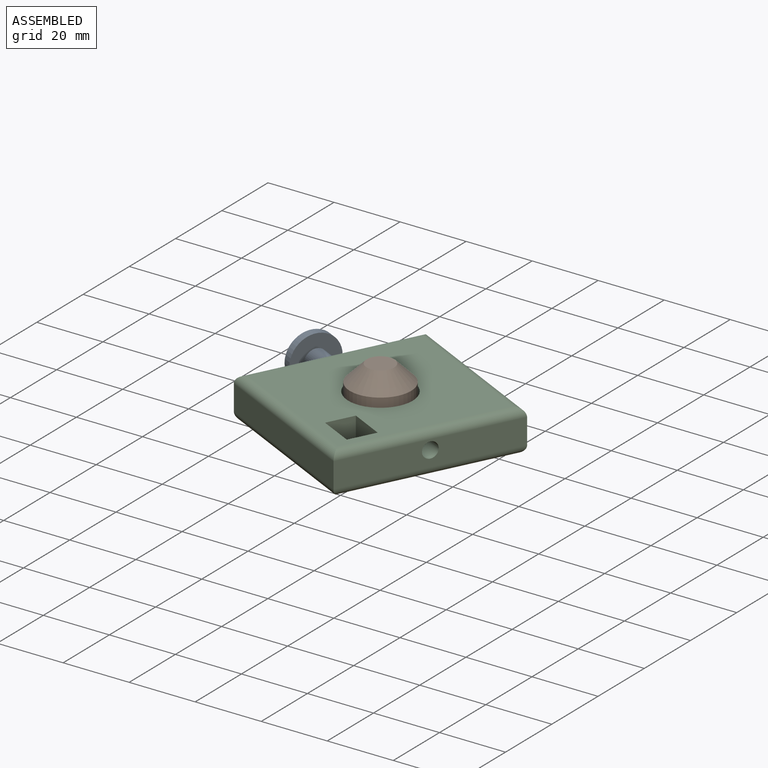
[diagram: assembled view]
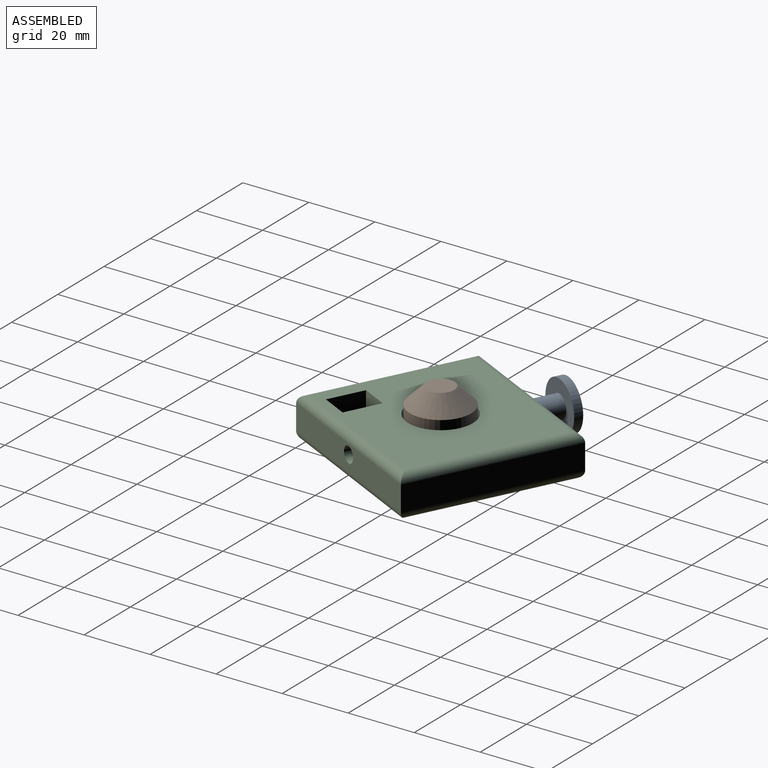
[diagram: assembled view, second angle]
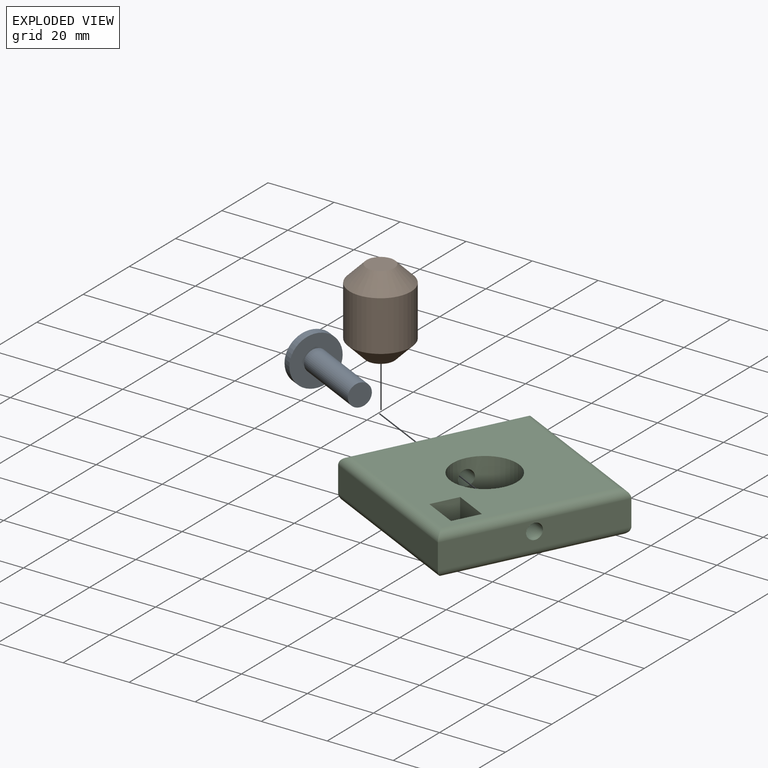
[diagram: exploded view]
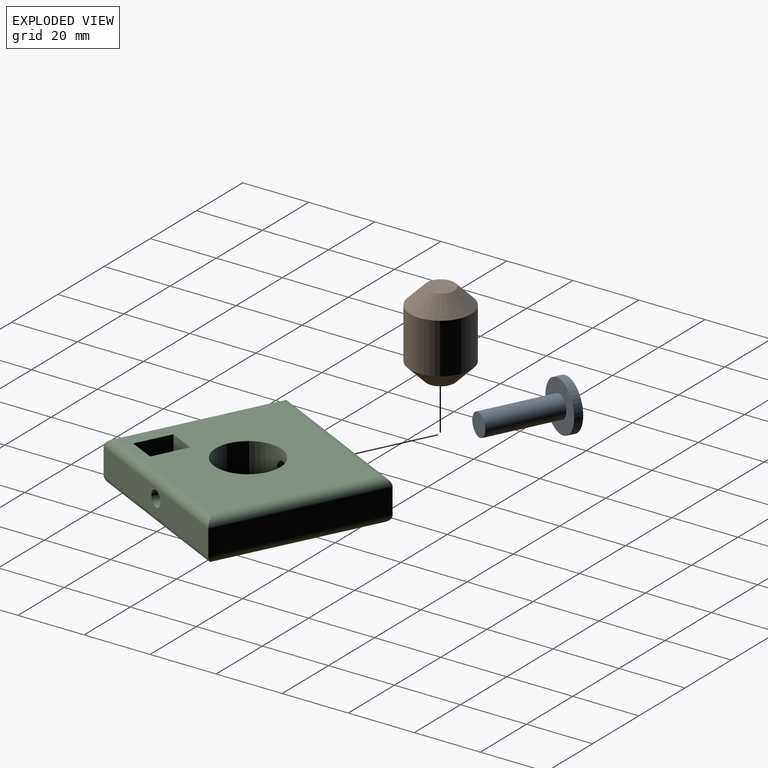
[diagram: exploded view, second angle]
ASSEMBLY  parts=3 mates=2
PART A: 5 faces, bbox 15x15x25.4 mm
  f0: cylinder r=3.39mm len=22.86mm, axis (0,0,-1), area 486.9mm2, adj f1,f3
  f1: plane 6.78x6.78mm, normal (0,0,1), area 36.1mm2, adj f0
  f2: cylinder r=7.51mm len=15.03mm, axis (0,0,-1), area 119.9mm2, adj f3,f4
  f3: plane 15.03x15.03mm, normal (0,0,1), area 141.2mm2, adj f0,f2
  f4: plane 15.03x15.03mm, normal (0,0,-1), area 177.3mm2, adj f2
PART B: 5 faces, bbox 18.5x18.5x25.4 mm
  f0: cylinder r=9.26mm len=18.52mm, axis (0,0,-1), area 886.8mm2, adj f3,f4
  f1: plane 8.36x8.36mm, normal (0,0,1), area 54.9mm2, adj f4
  f2: plane 8.36x8.36mm, normal (0,0,-1), area 54.9mm2, adj f3
  f3: cone r=9.26mm half-angle=45deg, axis (0,0,1), area 303.4mm2, adj f0,f2
  f4: cone r=4.18mm half-angle=45deg, axis (0,0,-1), area 303.4mm2, adj f0,f1
PART C: 22 faces, bbox 52x54.6x12.7 mm
  f0: plane 49.52x46.9mm, normal (0,0,1), area 1925mm2, adj f6,f7,f8,f9,f14,f17,f18,f19
  f1: plane 51.98x7.62mm, normal (0,-1,0), area 396.1mm2, adj f2,f4,f6,f10
  f2: plane 54.6x7.62mm, normal (1,0,0), area 398.5mm2, adj f1,f3,f7,f11,f16
  f3: plane 51.98x7.62mm, normal (0,1,0), area 396.1mm2, adj f2,f4,f9,f13
  f4: plane 54.6x7.62mm, normal (-1,0,0), area 398.5mm2, adj f1,f3,f8,f12,f15
  f5: plane 49.52x46.9mm, normal (0,0,-1), area 2023.7mm2, adj f10,f11,f12,f13,f14
  f6: cylinder r=2.54mm len=51.98mm, axis (-1,0,0), area 200mm2, adj f0,f1,f7,f8
  f7: cylinder r=2.54mm len=54.6mm, axis (0,-1,0), area 210.5mm2, adj f0,f2,f6,f9
  f8: cylinder r=2.54mm len=54.6mm, axis (0,1,0), area 210.5mm2, adj f0,f4,f6,f9
  f9: cylinder r=2.54mm len=51.98mm, axis (1,0,0), area 200mm2, adj f0,f3,f7,f8
  f10: cylinder r=2.54mm len=51.98mm, axis (1,0,0), area 200mm2, adj f1,f5,f11,f12
  f11: cylinder r=2.54mm len=54.6mm, axis (0,1,0), area 210.5mm2, adj f2,f5,f10,f13
  f12: cylinder r=2.54mm len=54.6mm, axis (0,-1,0), area 210.5mm2, adj f4,f5,f10,f13
  f13: cylinder r=2.54mm len=51.98mm, axis (-1,0,0), area 200mm2, adj f3,f5,f11,f12
  f14: cylinder r=9.75mm len=19.51mm, axis (0,0,1), area 743mm2, adj f0,f5,f15,f16
  f15: cylinder r=2.36mm len=16.53mm, axis (1,0,0), area 243.3mm2, adj f4,f14
  f16: cylinder r=2.36mm len=16.53mm, axis (1,0,0), area 243.3mm2, adj f2,f14
  f17: plane 11.33x6.35mm, normal (0,-1,0), area 71.9mm2, adj f0,f18,f20,f21
  f18: plane 8.71x6.35mm, normal (1,0,0), area 55.3mm2, adj f0,f17,f19,f21
  f19: plane 11.33x6.35mm, normal (0,1,0), area 71.9mm2, adj f0,f18,f20,f21
  f20: plane 8.71x6.35mm, normal (-1,0,0), area 55.3mm2, adj f0,f17,f19,f21
  f21: plane 11.33x8.71mm, normal (0,0,1), area 98.7mm2, adj f17,f18,f19,f20
PLACE A rot(axis=(-0.4,0.65,-0.65),136.4deg) t=(-95.47,-22.04,-8.46)mm
PLACE B t=(-63.29,-38.22,-20.81)mm fixed
PLACE C rot(axis=(0,0,-1),26.6deg) t=(-63.14,-38.22,-15.73)mm
MATE slider A.f0 <-> C.f15  axis (0.89,-0.45,0) through (-72.76,-33.41,-8.46)mm
MATE revolute C.f14 <-> B.f0  axis (0,0,-1) through (-63.14,-38.22,-15.73)mm
